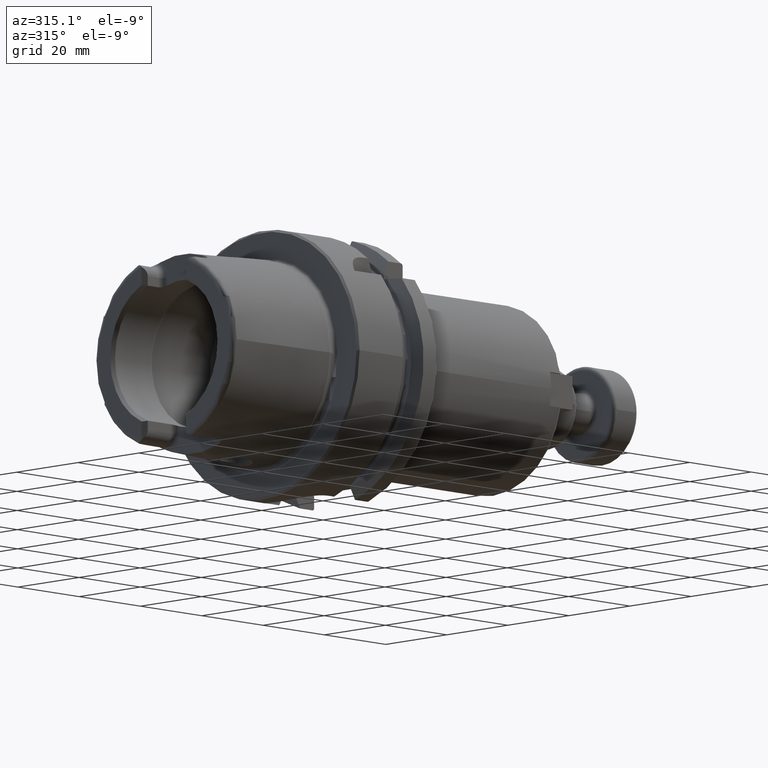
[diagram: clean part render]
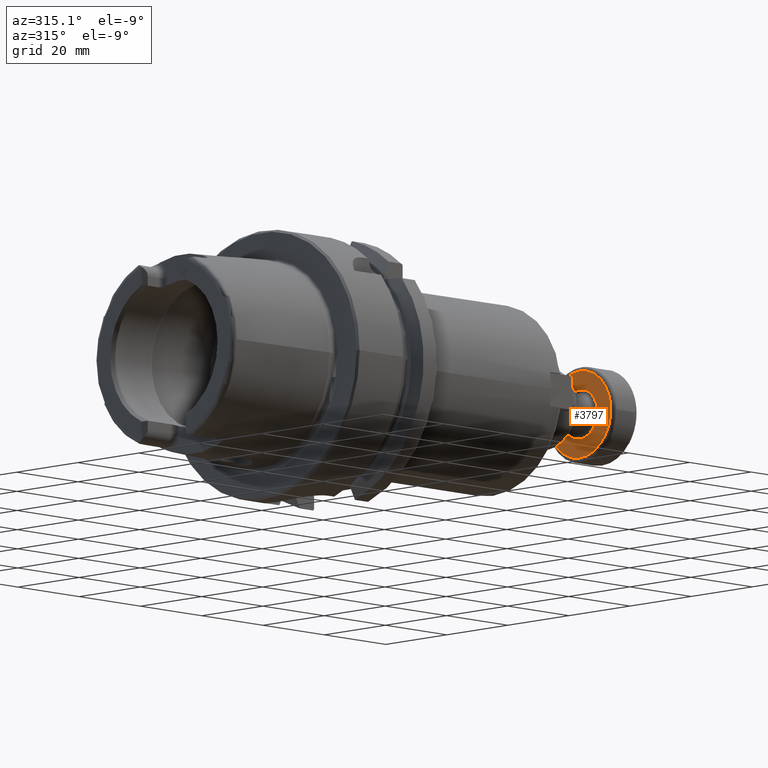
[diagram: same view with one face highlighted and labeled with its STEP entity id]
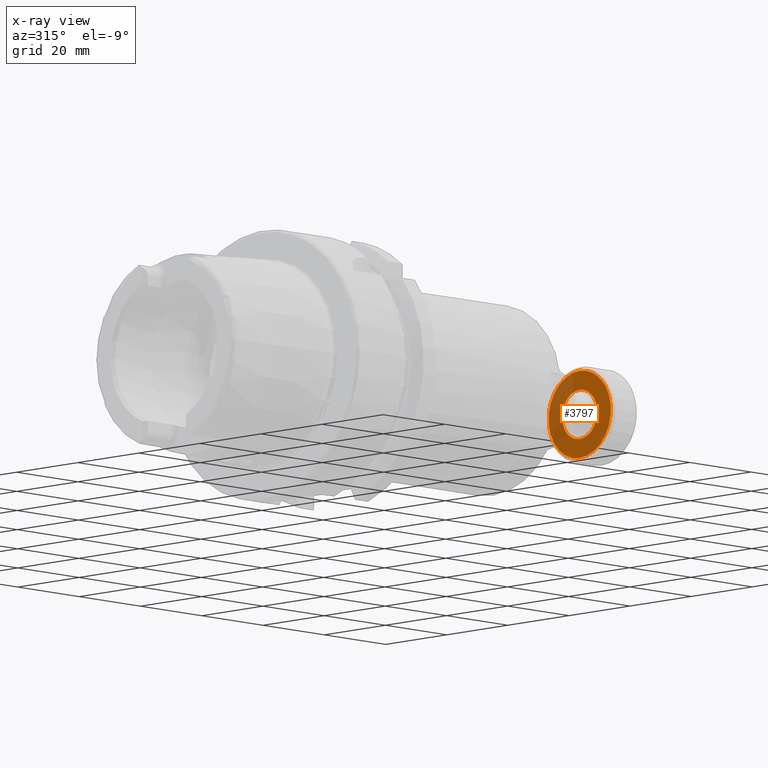
[diagram: x-ray of the same camera — body ghosted, the highlighted face saturated]
A machine part, auxiliary view. The second image highlights one B-rep face of the part: STEP entity #3797.
The next image is the same camera in x-ray: the body ghosted, the highlighted face saturated — about 31% of this face is hidden behind the body in this view.
In plain terms, the highlighted planar face has unit normal (-1, 0, -0).
Its self-contained STEP definition (entity closure, byte-faithful):
#698=FACE_BOUND('',#1201,.T.);
#766=PLANE('',#4374);
#994=FACE_OUTER_BOUND('',#1200,.T.);
#1200=EDGE_LOOP('',(#3479));
#1201=EDGE_LOOP('',(#3480));
#1822=CIRCLE('',#4372,5.7625);
#1824=CIRCLE('',#4375,10.2);
#2127=VERTEX_POINT('',#7633);
#2128=VERTEX_POINT('',#7637);
#2586=EDGE_CURVE('',#2127,#2127,#1822,.T.);
#2588=EDGE_CURVE('',#2128,#2128,#1824,.T.);
#3479=ORIENTED_EDGE('',*,*,#2588,.F.);
#3480=ORIENTED_EDGE('',*,*,#2586,.F.);
#3797=ADVANCED_FACE('',(#994,#698),#766,.T.);
#4372=AXIS2_PLACEMENT_3D('',#7634,#5392,#5393);
#4374=AXIS2_PLACEMENT_3D('',#7636,#5396,#5397);
#4375=AXIS2_PLACEMENT_3D('',#7638,#5398,#5399);
#5392=DIRECTION('center_axis',(1.,0.,0.));
#5393=DIRECTION('ref_axis',(0.,-1.,1.83697019872103E-16));
#5396=DIRECTION('center_axis',(1.,0.,0.));
#5397=DIRECTION('ref_axis',(0.,0.,-1.));
#5398=DIRECTION('center_axis',(-1.,0.,0.));
#5399=DIRECTION('ref_axis',(0.,-1.,1.83697019872103E-16));
#7633=CARTESIAN_POINT('',(8.,-7.05702718008662E-16,5.7625));
#7634=CARTESIAN_POINT('Origin',(8.,0.,0.));
#7636=CARTESIAN_POINT('Origin',(8.,4.7625,0.));
#7637=CARTESIAN_POINT('',(8.,-1.2491397351303E-15,10.2));
#7638=CARTESIAN_POINT('Origin',(8.,0.,0.));